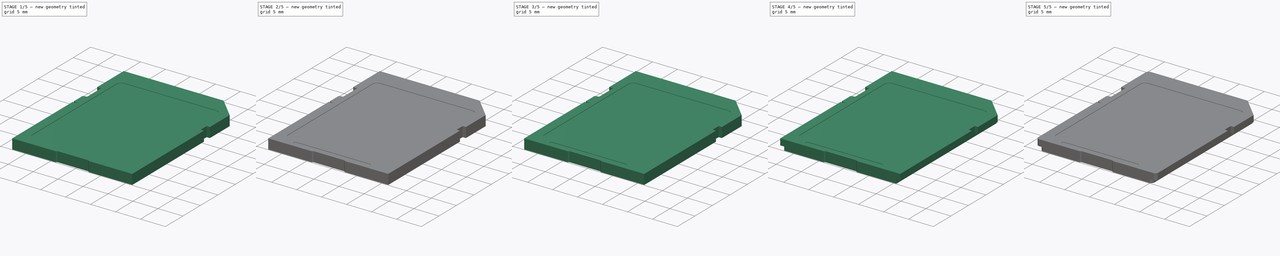
[diagram: build sequence overview — one tinted view per stage of 5, left to right]
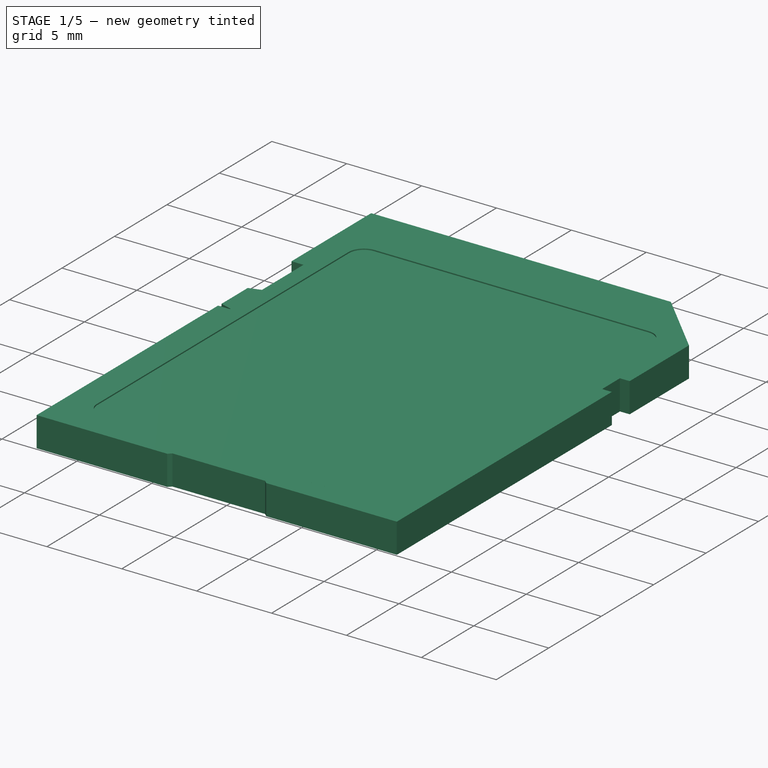
[diagram: stage 1 of 5 — iso view after this stage's code; geometry added in this stage tinted green]
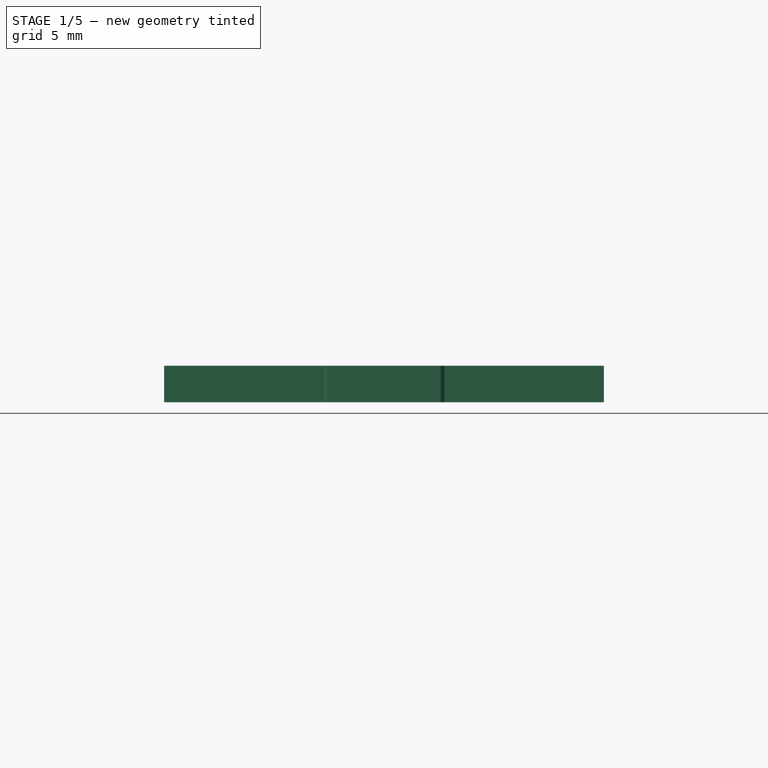
[diagram: stage 1 of 5 — front view after this stage's code; geometry added in this stage tinted green]
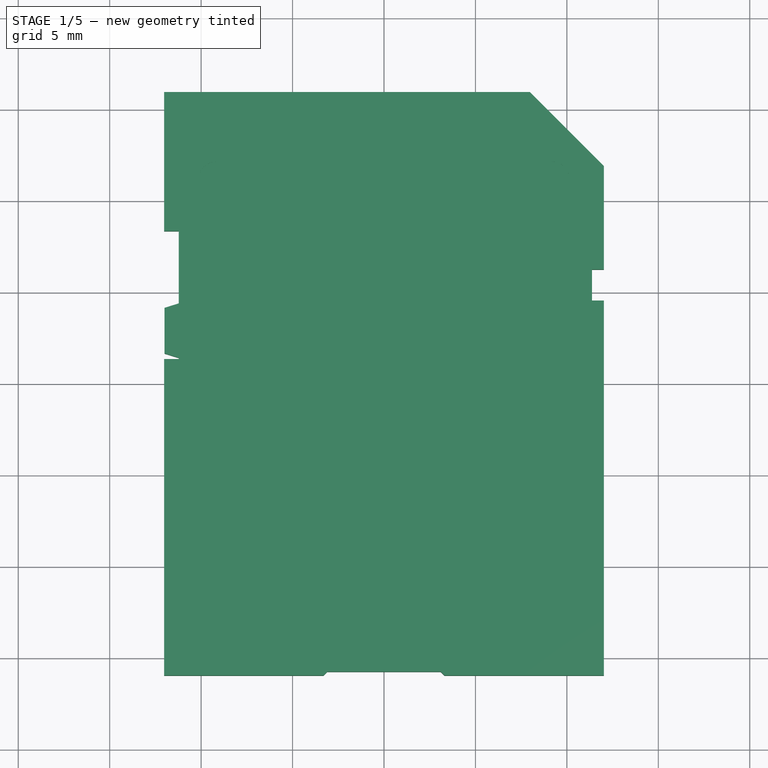
[diagram: stage 1 of 5 — top view after this stage's code; geometry added in this stage tinted green]
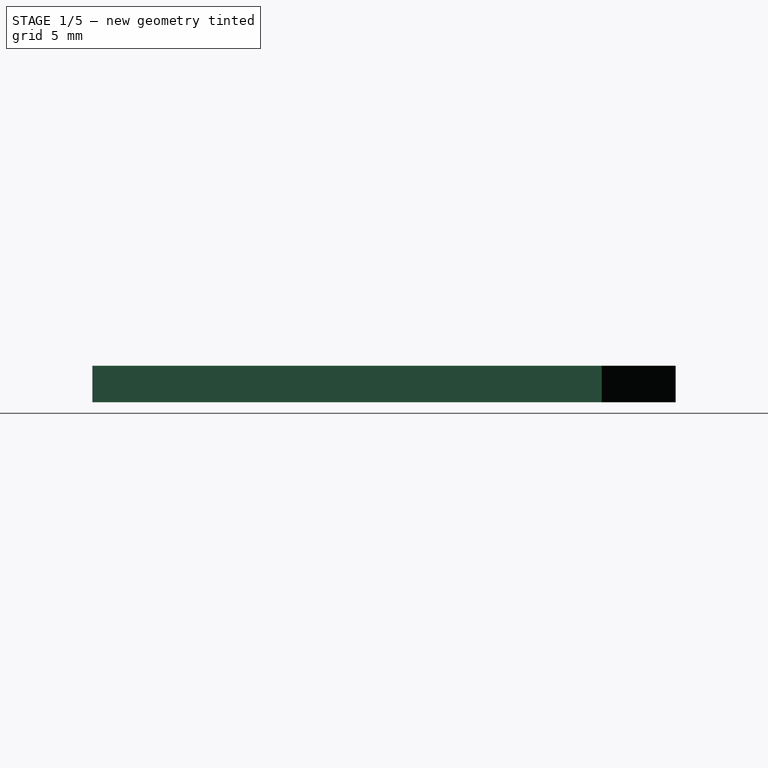
[diagram: stage 1 of 5 — right view after this stage's code; geometry added in this stage tinted green]
FCSTD DOCUMENT  (FreeCAD 0.14R3702 (Git))
Label: sd-card
License: CC-BY 3.0
LicenseURL: http://creativecommons.org/licenses/by/3.0/
objects: Sketcher::SketchObject×11, PartDesign::Pocket×6, PartDesign::Pad×5, PartDesign::LinearPattern×2, App::DocumentObjectGroup×2, Part::Feature×2, PartDesign::Mirrored×1, Part::Fillet×1, Part::Compound×1
note: 40 computed .brp shape members not serialized (recipe doc carries the construction recipe); baked Part::Feature solids carry a one-line shape summary decoded from their .brp

FEATURE [Sketcher::SketchObject] Sketch  label="sd-raw-body-sketch"
  sketch-geometry (17):
    g0: LineSegment StartX=-12.0218 StartY=15.95 StartZ=0 EndX=7.97822 EndY=15.95 EndZ=0
    g1: LineSegment StartX=7.97822 StartY=15.95 StartZ=0 EndX=12.0218 EndY=11.9064 EndZ=0
    g2: LineSegment StartX=12.0218 StartY=11.9064 StartZ=0 EndX=12.0218 EndY=6.25 EndZ=0
    g3: LineSegment StartX=12.0218 StartY=-15.95 StartZ=0 EndX=3.3 EndY=-15.95 EndZ=0
    g4: LineSegment StartX=-12.0218 StartY=-15.95 StartZ=0 EndX=-12.0218 EndY=1.35 EndZ=0
    g5: LineSegment StartX=12.0218 StartY=6.25 StartZ=0 EndX=11.3718 EndY=6.25 EndZ=0
    g6: LineSegment StartX=11.3718 StartY=6.25 StartZ=0 EndX=11.3718 EndY=4.55 EndZ=0
    g7: LineSegment StartX=11.3718 StartY=4.55 StartZ=0 EndX=12.0218 EndY=4.55 EndZ=0
    g8: LineSegment StartX=12.0218 StartY=4.55 StartZ=0 EndX=12.0218 EndY=-15.95 EndZ=0
    g9: LineSegment StartX=-12.0218 StartY=8.35 StartZ=0 EndX=-11.2218 EndY=8.35 EndZ=0
    g10: LineSegment StartX=-11.2218 StartY=8.35 StartZ=0 EndX=-11.2218 EndY=1.35 EndZ=0
    g11: LineSegment StartX=-11.2218 StartY=1.35 StartZ=0 EndX=-12.0218 EndY=1.35 EndZ=0
    g12: LineSegment StartX=-12.0218 StartY=8.35 StartZ=0 EndX=-12.0218 EndY=15.95 EndZ=0
    g13: LineSegment StartX=-3.3 StartY=-15.95 StartZ=0 EndX=-3.1 EndY=-15.75 EndZ=0
    g14: LineSegment StartX=-3.1 StartY=-15.75 StartZ=0 EndX=3.1 EndY=-15.75 EndZ=0
    g15: LineSegment StartX=3.1 StartY=-15.75 StartZ=0 EndX=3.3 EndY=-15.95 EndZ=0
    g16: LineSegment StartX=-3.3 StartY=-15.95 StartZ=0 EndX=-12.0218 EndY=-15.95 EndZ=0
  constraints (47):
    c: Horizontal(g0)
    c: Coincident(g0,g1)
    c: Coincident(g1,g2)
    c: Vertical(g2)
    c: Coincident(g8,g3)
    c: Horizontal(g3)
    c: Coincident(g16,g4)
    c: Coincident(g12,g0)
    c: Vertical(g4)
    c: Symmetric(g0,g8,g-1)
    c: Angle(g1,g-1) = 0.785398
    c: DistanceX(g0) = 20
    c: Horizontal(g5)
    c: Coincident(g5,g6)
    c: Vertical(g6)
    c: Coincident(g6,g7)
    c: Horizontal(g7)
    c: Tangent(g2,g8)
    c: Coincident(g5,g2)
    c: Coincident(g7,g8)
    c: DistanceY(g6) = -1.7
    c: DistanceX(g5) = -0.65
    c: DistanceY(g8) = -20.5
    c: Horizontal(g9)
    c: Coincident(g9,g10)
    c: Vertical(g10)
    c: Coincident(g10,g11)
    c: Horizontal(g11)
    c: Coincident(g12,g9)
    c: Tangent(g4,g12)
    c: Coincident(g11,g4)
    c: DistanceY(g16,g0) = 31.9
    c: DistanceY(g10) = -7
    c: DistanceX(g11) = -0.8
    c: DistanceY(g4) = 17.3
    c: Coincident(g13,g14)
    c: Coincident(g14,g15)
    c: Horizontal(g14)
    c: DistanceX(g3,g16) = -24.0436
    c: Tangent(g3,g16)
    c: Coincident(g13,g16)
    c: Coincident(g15,g3)
    c: Symmetric(g13,g3,g-2)
    c: DistanceX(g14) = 6.2
    c: Angle(g3,g13) = 0.785398
    c: Angle(g3,g15) = 2.35619
    c: DistanceY(g3,g14) = 0.2
FEATURE [PartDesign::Pad] Pad  label="sd-raw-body"
  Length = 2
  Length2 = 100
  Sketch = -> Sketch
  Type = 0
FEATURE [Sketcher::SketchObject] Sketch001  label="label-pocket-sketch"
  ExternalGeometry = -> [Pad]
  Placement = pos=(0,0,2) rot=(0,0,1;0rad)
  Support = -> Pad [Face19]
  sketch-geometry (8):
    g0: LineSegment StartX=-9.15 StartY=12.15 StartZ=0 EndX=9.15 EndY=12.15 EndZ=0
    g1: LineSegment StartX=10.15 StartY=11.15 StartZ=0 EndX=10.15 EndY=-12.85 EndZ=0
    g2: LineSegment StartX=9.15 StartY=-13.85 StartZ=0 EndX=-9.15 EndY=-13.85 EndZ=0
    g3: LineSegment StartX=-10.15 StartY=-12.85 StartZ=0 EndX=-10.15 EndY=11.15 EndZ=0
    g4: ArcOfCircle CenterX=-9.15 CenterY=11.15 CenterZ=0 NormalX=0 NormalY=0 NormalZ=1 Radius=1 StartAngle=1.5708 EndAngle=3.14159
    g5: ArcOfCircle CenterX=9.15 CenterY=11.15 CenterZ=0 NormalX=0 NormalY=0 NormalZ=1 Radius=1 StartAngle=0 EndAngle=1.5708
    g6: ArcOfCircle CenterX=9.15 CenterY=-12.85 CenterZ=0 NormalX=0 NormalY=0 NormalZ=1 Radius=1 StartAngle=4.71239 EndAngle=6.28319
    g7: ArcOfCircle CenterX=-9.15 CenterY=-12.85 CenterZ=0 NormalX=0 NormalY=0 NormalZ=1 Radius=1 StartAngle=3.14159 EndAngle=4.71239
  constraints (20):
    c: Horizontal(g0)
    c: Horizontal(g2)
    c: Vertical(g1)
    c: Vertical(g3)
    c: Tangent(g0,g4)
    c: Tangent(g3,g4)
    c: Tangent(g0,g5)
    c: Tangent(g1,g5)
    c: Tangent(g1,g6)
    c: Tangent(g2,g6)
    c: Tangent(g2,g7)
    c: Tangent(g3,g7)
    c: Equal(g4,g5)
    c: Equal(g5,g6)
    c: Equal(g6,g7)
    c: Symmetric(g7,g6,g-2)
    c: Radius(g4) = 1
    c: DistanceY(g2,g0) = 26
    c: DistanceX(g3,g1) = 20.3
    c: DistanceY(g-3,g0) = -3.8
FEATURE [PartDesign::Pocket] Pocket  label="pocket label"
  Length = 0.08
  Sketch = -> Sketch001
  Type = 0
FEATURE [App::DocumentObjectGroup] Group  label="sd-card-src"
  Group = -> [Pad,Pocket,Pocket001,Pocket002,LinearPattern,Pocket003,Pad001,LinearPattern001,Pad002,Pocket004,Mirrored,Pocket007,Fillet]
FEATURE [Part::Feature] Fillet001  label="sd-card-final"
  shape: bbox 24.04 x 31.9 x 2 mm, 102 faces (baked)
FEATURE [Part::Compound] Compound  label="sd-card-final001"
  Links = -> [Pad007,Fillet001]
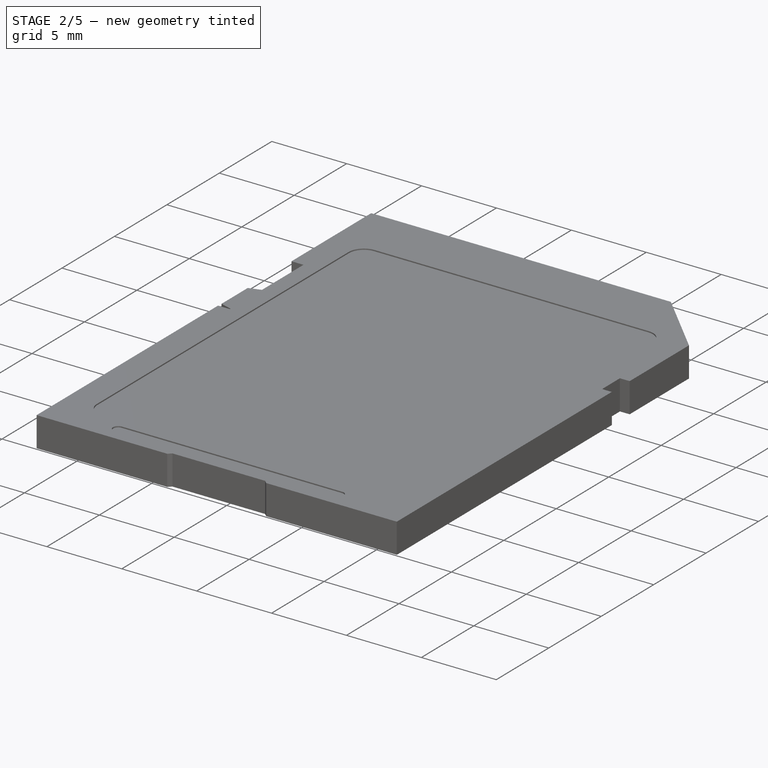
[diagram: stage 2 of 5 — iso view after this stage's code; geometry added in this stage tinted green]
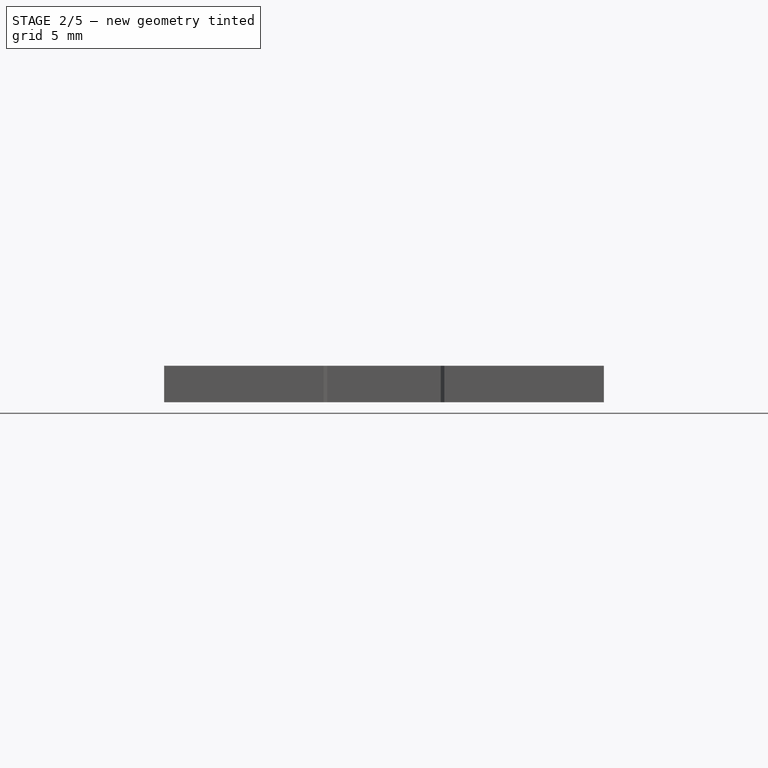
[diagram: stage 2 of 5 — front view after this stage's code; geometry added in this stage tinted green]
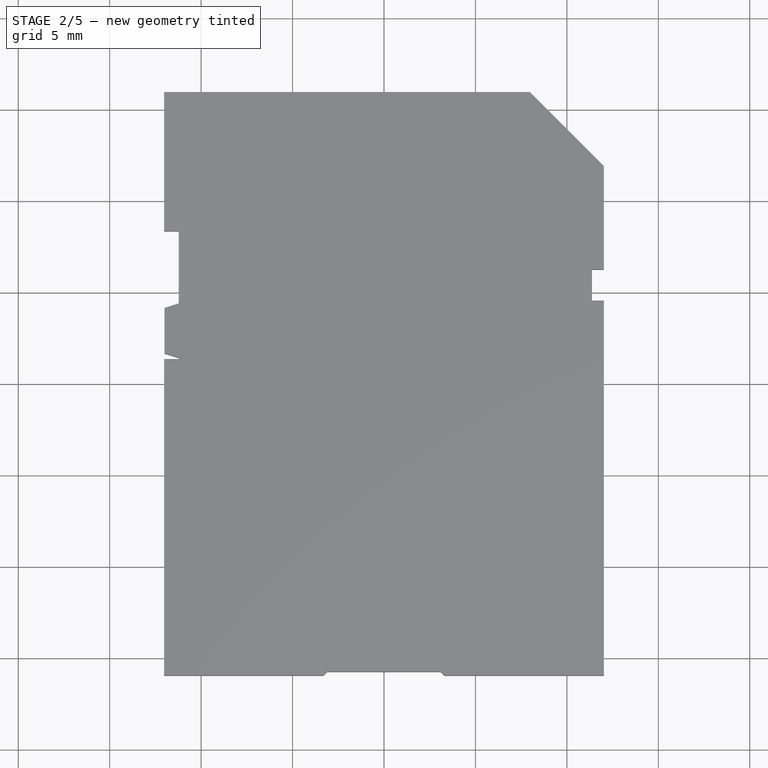
[diagram: stage 2 of 5 — top view after this stage's code; geometry added in this stage tinted green]
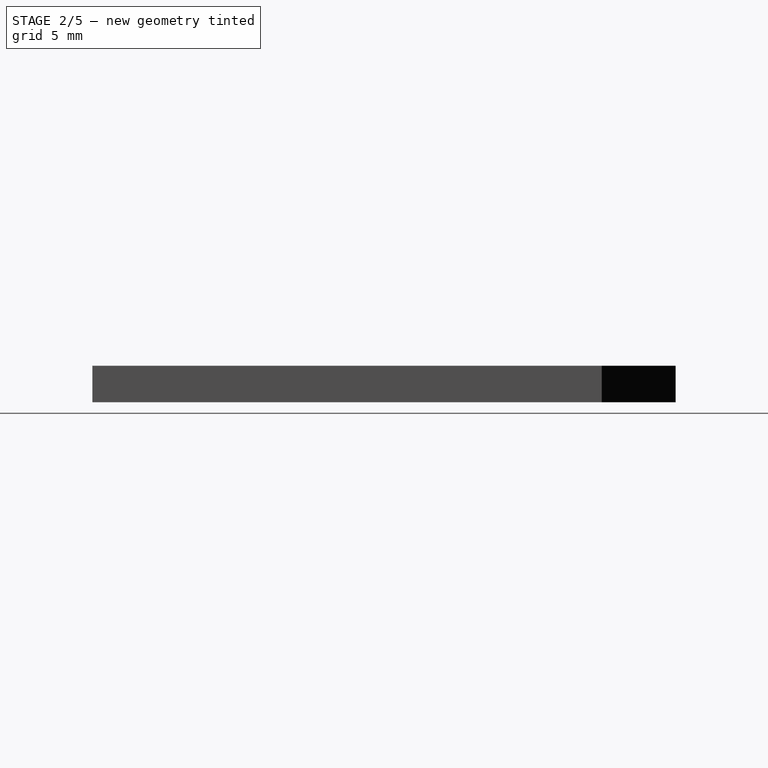
[diagram: stage 2 of 5 — right view after this stage's code; geometry added in this stage tinted green]
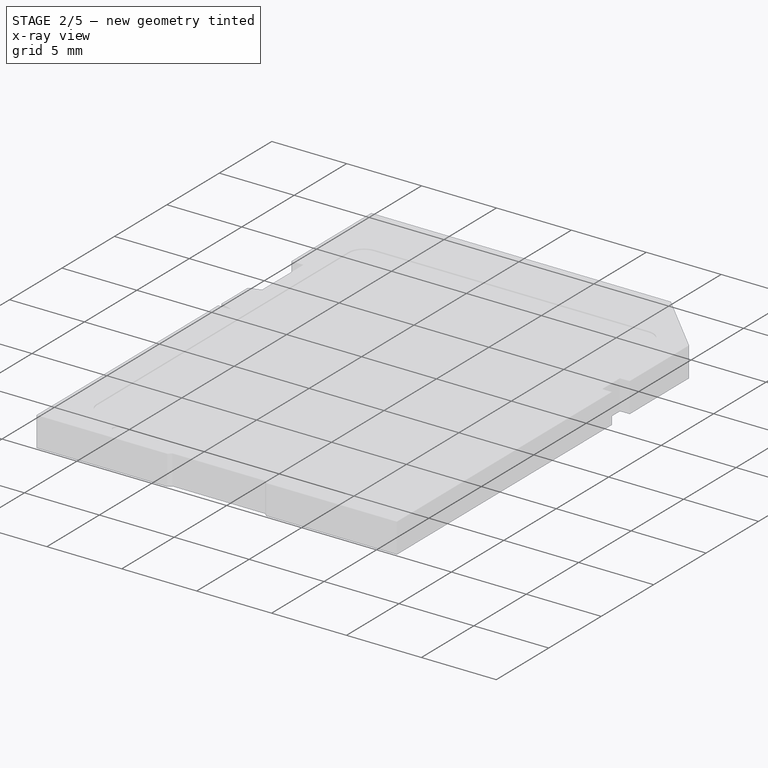
[diagram: stage 2 of 5 — x-ray composite at the iso view; earlier geometry ghosted, this stage's added geometry solid]
FEATURE [Sketcher::SketchObject] Sketch002  label="top_bottom_pocket-sketch"
  ExternalGeometry = -> [Pocket]
  Placement = pos=(0,0,2) rot=(0,0,1;0rad)
  Support = -> Pocket [Face5]
  sketch-geometry (5):
    g0: ArcOfCircle CenterX=-7.35 CenterY=-14.84 CenterZ=0 NormalX=0 NormalY=0 NormalZ=1 Radius=0.35 StartAngle=1.5708 EndAngle=4.71239
    g1: LineSegment StartX=-7.35 StartY=-14.49 StartZ=0 EndX=7.35 EndY=-14.49 EndZ=0
    g2: LineSegment StartX=-7.35 StartY=-15.19 StartZ=0 EndX=7.35 EndY=-15.19 EndZ=0
    g3: ArcOfCircle CenterX=7.35 CenterY=-14.84 CenterZ=0 NormalX=0 NormalY=0 NormalZ=1 Radius=0.35 StartAngle=4.71239 EndAngle=7.85398
    g4: LineSegment [constr] StartX=-7.7 StartY=-14.84 StartZ=0 EndX=7.7 EndY=-14.84 EndZ=0
  constraints (19):
    c: Radius(g0) = 0.35
    c: Horizontal(g1)
    c: Tangent(g1,g0)
    c: Horizontal(g2)
    c: Coincident(g0,g1)
    c: Coincident(g0,g2)
    c: Coincident(g2,g0)
    c: Tangent(g2,g0)
    c: Coincident(g3,g2)
    c: Coincident(g3,g1)
    c: Tangent(g2,g3)
    c: PointOnObject(g4,g0)
    c: PointOnObject(g4,g3)
    c: Horizontal(g4)
    c: PointOnObject(g3,g4)
    c: Symmetric(g4,g4,g-2)
    c: Tangent(g1,g3)
    c: DistanceX(g4) = 15.4
    c: DistanceY(g0,g-3) = -0.76
FEATURE [PartDesign::Pocket] Pocket001  label="top-bottom-pocket"
  Length = 0.08
  Sketch = -> Sketch002
  Type = 0
FEATURE [Sketcher::SketchObject] Sketch003  label="Contact-sketch"
  ExternalGeometry = -> [Pocket001]
  Placement = pos=(0,0,0) rot=(1,0,0;3.14159rad)
  Support = -> Pocket001 [Face4]
  sketch-geometry (4):
    g0: LineSegment StartX=7.97822 StartY=-16.95 StartZ=0 EndX=6.07822 EndY=-16.95 EndZ=0
    g1: LineSegment StartX=6.07822 StartY=-16.95 StartZ=0 EndX=6.07822 EndY=-10.35 EndZ=0
    g2: LineSegment StartX=6.07822 StartY=-10.35 StartZ=0 EndX=7.97822 EndY=-10.35 EndZ=0
    g3: LineSegment StartX=7.97822 StartY=-10.35 StartZ=0 EndX=7.97822 EndY=-16.95 EndZ=0
  constraints (12):
    c: Coincident(g0,g1)
    c: Coincident(g1,g2)
    c: Coincident(g2,g3)
    c: Coincident(g3,g0)
    c: Horizontal(g0)
    c: Horizontal(g2)
    c: Vertical(g1)
    c: Vertical(g3)
    c: PointOnObject(g-3,g3)
    c: DistanceX(g2) = 1.9
    c: DistanceY(g-3,g2) = 5.6
    c: DistanceY(g-3,g0) = -1
FEATURE [PartDesign::Pocket] Pocket002  label="Contact-pocket"
  Length = 0.55
  Sketch = -> Sketch003
  Type = 0
FEATURE [PartDesign::LinearPattern] LinearPattern  label="8-contacts"
  Direction = -> Sketch003 [H_Axis]
  Length = 16.65
  Occurrences = 8
  Originals = -> [Pocket002]
  Reversed = true
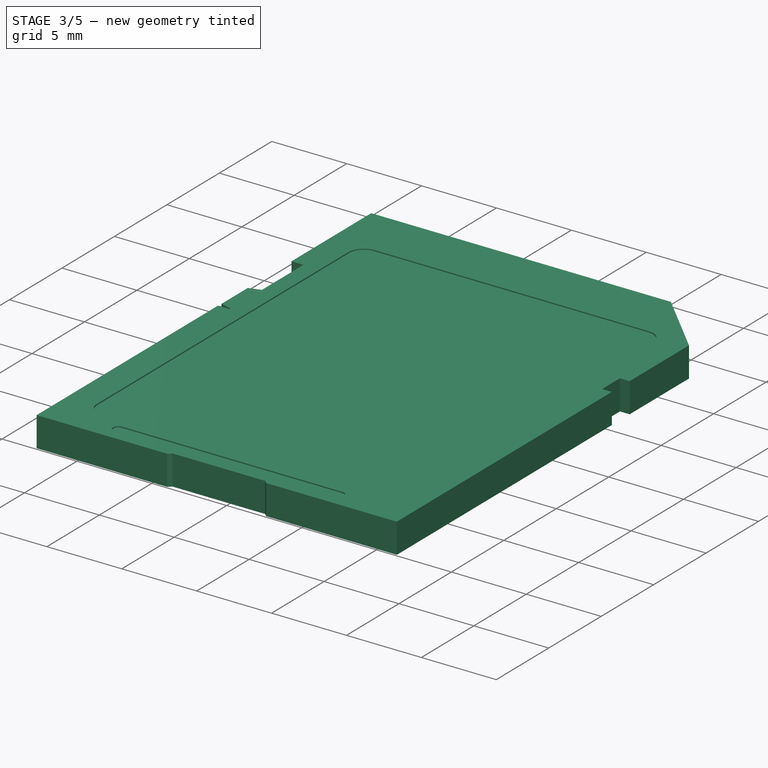
[diagram: stage 3 of 5 — iso view after this stage's code; geometry added in this stage tinted green]
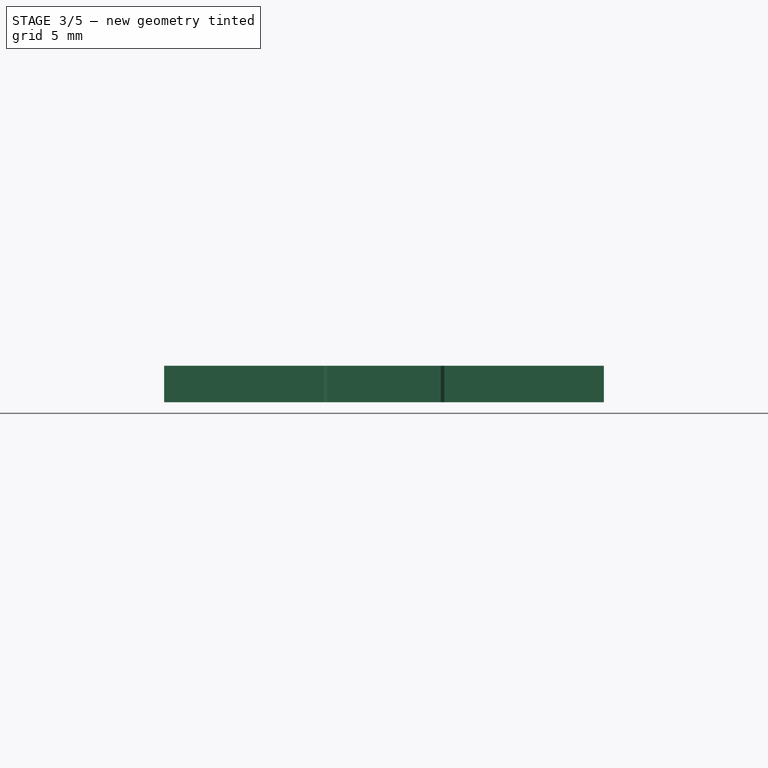
[diagram: stage 3 of 5 — front view after this stage's code; geometry added in this stage tinted green]
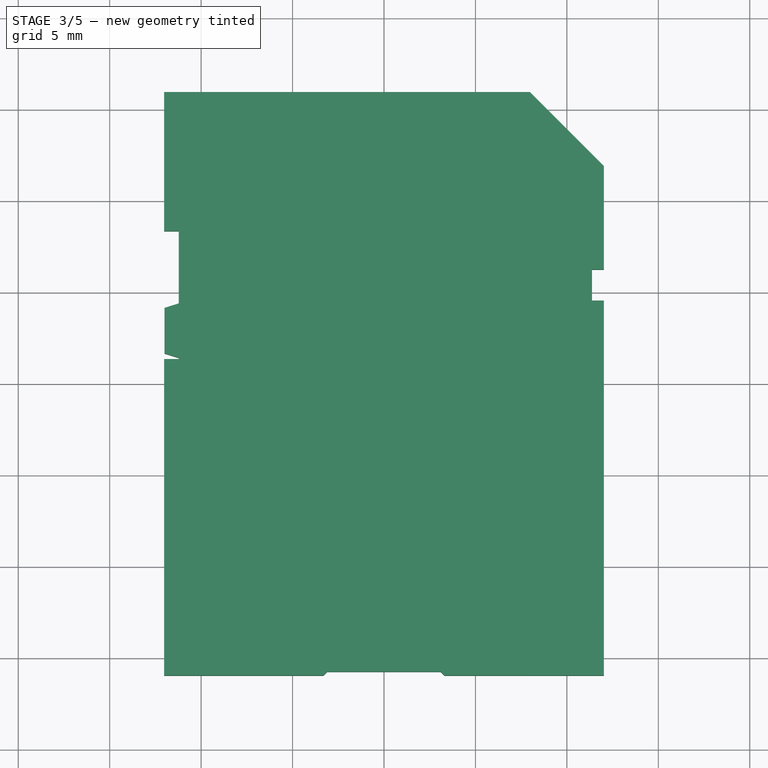
[diagram: stage 3 of 5 — top view after this stage's code; geometry added in this stage tinted green]
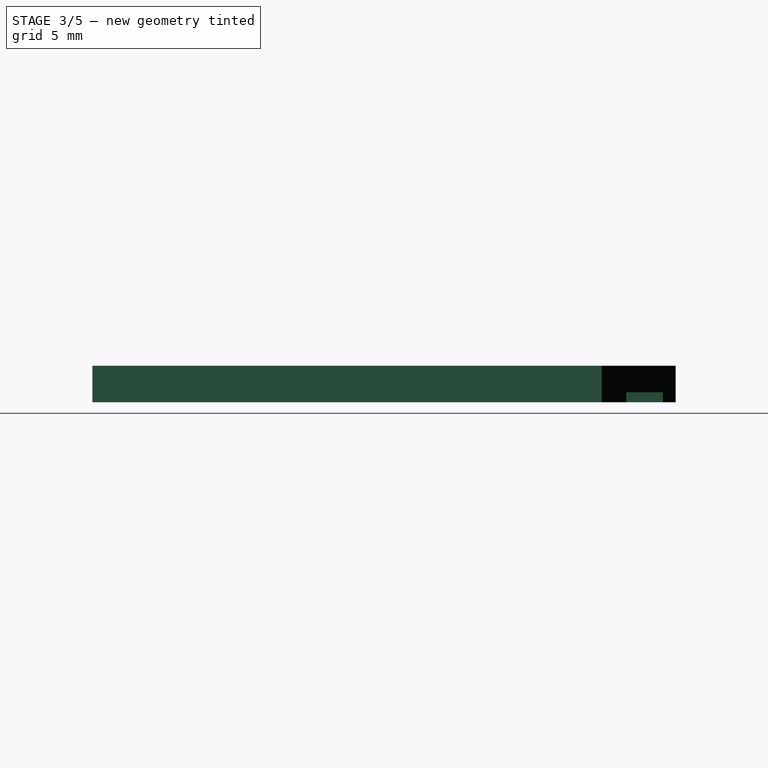
[diagram: stage 3 of 5 — right view after this stage's code; geometry added in this stage tinted green]
FEATURE [Sketcher::SketchObject] Sketch004
  ExternalGeometry = -> [LinearPattern]
  Placement = pos=(0,0,0) rot=(1,0,0;3.14159rad)
  Support = -> LinearPattern [Face4]
  sketch-geometry (4):
    g0: LineSegment StartX=8.67822 StartY=-8.35 StartZ=0 EndX=10.6782 EndY=-8.35 EndZ=0
    g1: LineSegment StartX=10.6782 StartY=-8.35 StartZ=0 EndX=10.6782 EndY=-16.95 EndZ=0
    g2: LineSegment StartX=10.6782 StartY=-16.95 StartZ=0 EndX=8.67822 EndY=-16.95 EndZ=0
    g3: LineSegment StartX=8.67822 StartY=-16.95 StartZ=0 EndX=8.67822 EndY=-8.35 EndZ=0
  constraints (12):
    c: Coincident(g0,g1)
    c: Coincident(g1,g2)
    c: Coincident(g2,g3)
    c: Coincident(g3,g0)
    c: Horizontal(g0)
    c: Horizontal(g2)
    c: Vertical(g1)
    c: Vertical(g3)
    c: DistanceX(g-3,g0) = 0.7
    c: DistanceY(g-3,g0) = 2
    c: DistanceX(g0) = 2
    c: DistanceY(g-3,g2) = -1
FEATURE [PartDesign::Pocket] Pocket003  label="9th-contact"
  Length = 0.55
  Sketch = -> Sketch004
  Type = 0
FEATURE [Sketcher::SketchObject] Sketch005
  ExternalGeometry = -> [Pocket003]
  Placement = pos=(0,0,0.55) rot=(1,0,0;3.14159rad)
  Support = -> Pocket003 [Face60]
  sketch-geometry (4):
    g0: LineSegment StartX=6.07822 StartY=-10.35 StartZ=0 EndX=7.97822 EndY=-10.35 EndZ=0
    g1: LineSegment StartX=7.97822 StartY=-10.35 StartZ=0 EndX=7.97822 EndY=-15.25 EndZ=0
    g2: LineSegment StartX=7.97822 StartY=-15.25 StartZ=0 EndX=6.07822 EndY=-15.25 EndZ=0
    g3: LineSegment StartX=6.07822 StartY=-15.25 StartZ=0 EndX=6.07822 EndY=-10.35 EndZ=0
  constraints (11):
    c: Coincident(g0,g1)
    c: Coincident(g1,g2)
    c: Coincident(g2,g3)
    c: Coincident(g3,g0)
    c: Horizontal(g0)
    c: Horizontal(g2)
    c: Vertical(g1)
    c: Vertical(g3)
    c: Coincident(g0,g-5)
    c: Coincident(g0,g-4)
    c: DistanceY(g1,g-4) = -0.7
FEATURE [PartDesign::Pad] Pad001  label="master-contac-pad"
  Length = 0.1
  Length2 = 100
  Sketch = -> Sketch005
  Type = 0
FEATURE [PartDesign::LinearPattern] LinearPattern001  label="contac-pad"
  Direction = -> Sketch005 [H_Axis]
  Length = 16.65
  Occurrences = 8
  Originals = -> [Pad001]
  Reversed = true
FEATURE [Sketcher::SketchObject] Sketch006
  ExternalGeometry = -> [LinearPattern001]
  Placement = pos=(0,0,0.55) rot=(1,0,0;3.14159rad)
  Support = -> LinearPattern001 [Face83]
  sketch-geometry (5):
    g0: LineSegment StartX=8.67822 StartY=-8.35 StartZ=0 EndX=8.67822 EndY=-13.15 EndZ=0
    g1: LineSegment StartX=8.67822 StartY=-13.15 StartZ=0 EndX=10.1782 EndY=-13.15 EndZ=0
    g2: LineSegment StartX=10.1782 StartY=-13.15 StartZ=0 EndX=10.6782 EndY=-12.65 EndZ=0
    g3: LineSegment StartX=10.6782 StartY=-12.65 StartZ=0 EndX=10.6782 EndY=-8.35 EndZ=0
    g4: LineSegment StartX=10.6782 StartY=-8.35 StartZ=0 EndX=8.67822 EndY=-8.35 EndZ=0
  constraints (14):
    c: Vertical(g0)
    c: Coincident(g0,g1)
    c: Coincident(g1,g2)
    c: Coincident(g2,g3)
    c: Vertical(g3)
    c: Coincident(g3,g4)
    c: Horizontal(g4)
    c: Coincident(g4,g0)
    c: Coincident(g-3,g0)
    c: Coincident(g3,g-4)
    c: Horizontal(g1)
    c: Angle(g2,g1) = 2.35619
    c: DistanceY(g2,g-4) = -0.6
    c: DistanceY(g0) = -4.8
FEATURE [PartDesign::Pad] Pad002  label="9th-contac-path"
  Length = 0.1
  Length2 = 100
  Sketch = -> Sketch006
  Type = 0
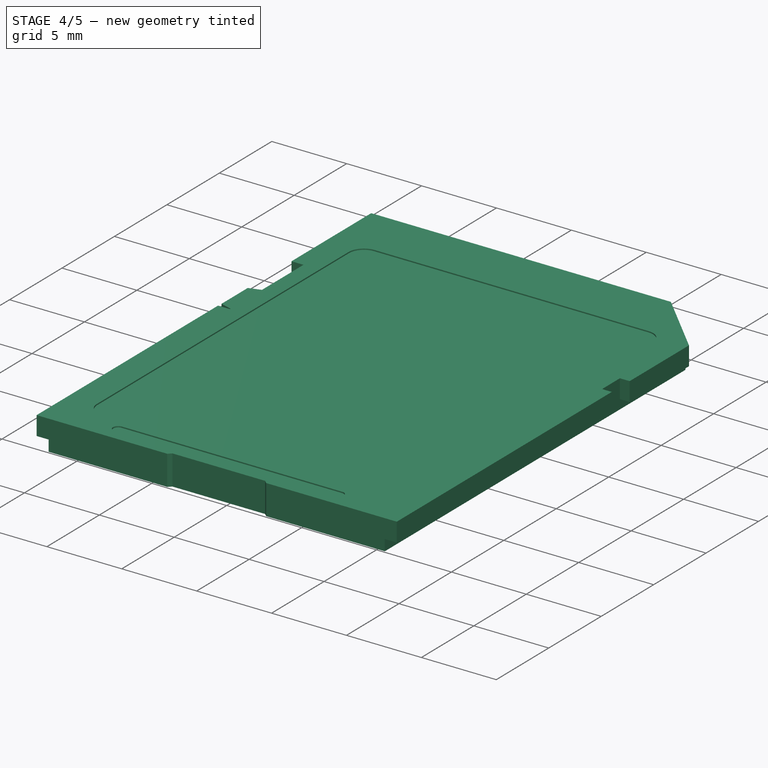
[diagram: stage 4 of 5 — iso view after this stage's code; geometry added in this stage tinted green]
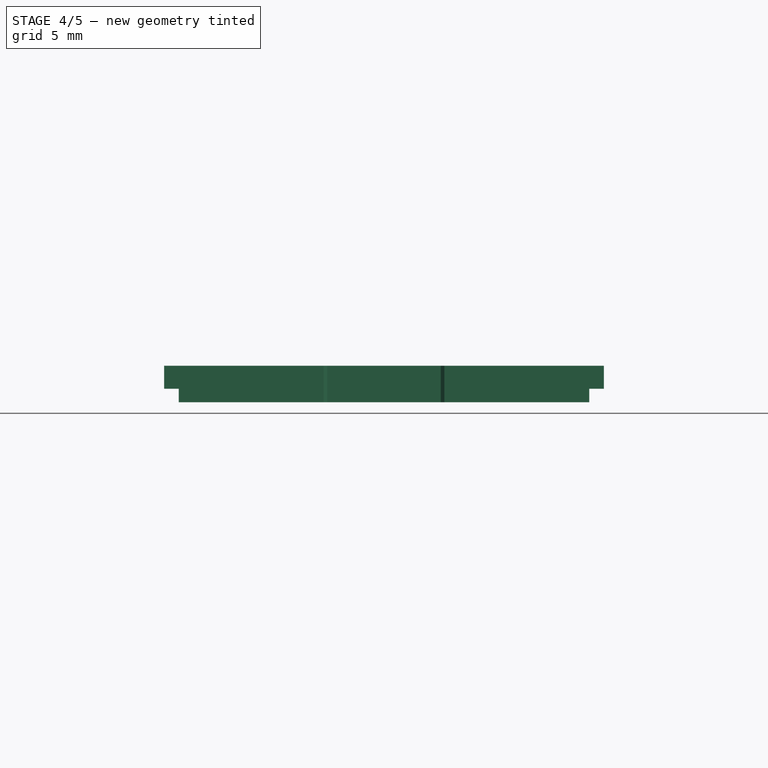
[diagram: stage 4 of 5 — front view after this stage's code; geometry added in this stage tinted green]
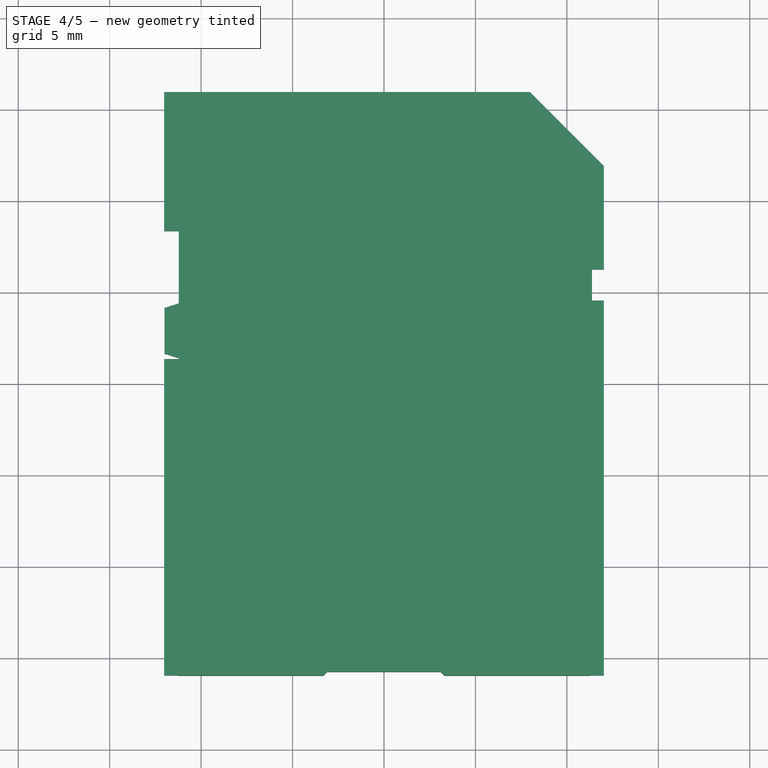
[diagram: stage 4 of 5 — top view after this stage's code; geometry added in this stage tinted green]
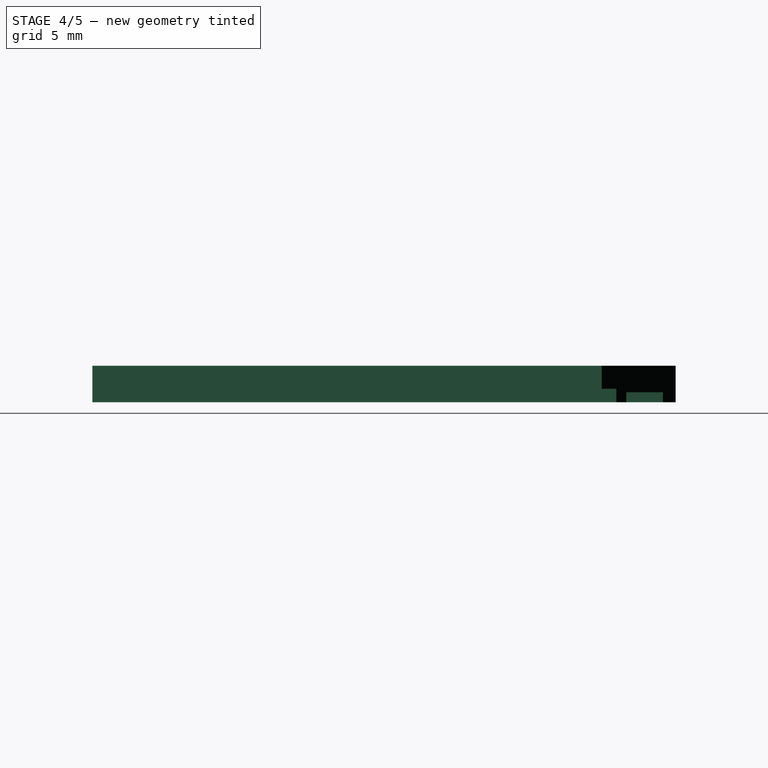
[diagram: stage 4 of 5 — right view after this stage's code; geometry added in this stage tinted green]
FEATURE [Sketcher::SketchObject] Sketch007
  ExternalGeometry = -> [Pad002]
  Placement = pos=(0,-15.95,0) rot=(1,0,0;1.5708rad)
  Support = -> Pad002 [Face2]
  sketch-geometry (6):
    g0: LineSegment StartX=-11.2218 StartY=0.74 StartZ=0 EndX=-11.2218 EndY=-0.191555 EndZ=0
    g1: LineSegment StartX=-11.2218 StartY=-0.191555 StartZ=0 EndX=-12.6141 EndY=-0.191555 EndZ=0
    g2: LineSegment StartX=-11.2218 StartY=0.74 StartZ=0 EndX=-12.0218 EndY=0.74 EndZ=0
    g3: LineSegment StartX=-12.0218 StartY=0.74 StartZ=0 EndX=-12.6141 EndY=0.74 EndZ=0
    g4: LineSegment StartX=-12.6141 StartY=0.74 StartZ=0 EndX=-12.6141 EndY=0 EndZ=0
    g5: LineSegment StartX=-12.6141 StartY=0 StartZ=0 EndX=-12.6141 EndY=-0.191555 EndZ=0
  constraints (16):
    c: Coincident(g0,g1)
    c: Horizontal(g1)
    c: Vertical(g0)
    c: Coincident(g2,g0)
    c: PointOnObject(g2,g-3)
    c: Horizontal(g2)
    c: Coincident(g3,g2)
    c: Horizontal(g3)
    c: DistanceX(g2) = -0.8
    c: Coincident(g4,g3)
    c: PointOnObject(g4,g-1)
    c: Vertical(g4)
    c: Coincident(g5,g4)
    c: Vertical(g5)
    c: Coincident(g1,g5)
    c: DistanceY(g4) = -0.74
FEATURE [PartDesign::Pocket] Pocket004  label="left-side"
  Length = 5
  Sketch = -> Sketch007
  Type = 1
FEATURE [PartDesign::Mirrored] Mirrored  label="right-side"
  MirrorPlane = -> Sketch007 [V_Axis]
  Originals = -> [Pocket004]
FEATURE [App::DocumentObjectGroup] Group001  label="lid-src"
  Group = -> [Pad003,Pad006]
FEATURE [Part::Feature] Pad007  label="lid"
  Placement = pos=(-11.2,2.9,0.8) rot=(0,0,1;0rad)
  shape: bbox 1.2 x 3 x 1.2 mm, 12 faces (baked)
FEATURE [PartDesign::Pocket] Pocket007  label="lid-rail001"
  Length = 0.5
  Sketch = -> Sketch008
  Type = 0
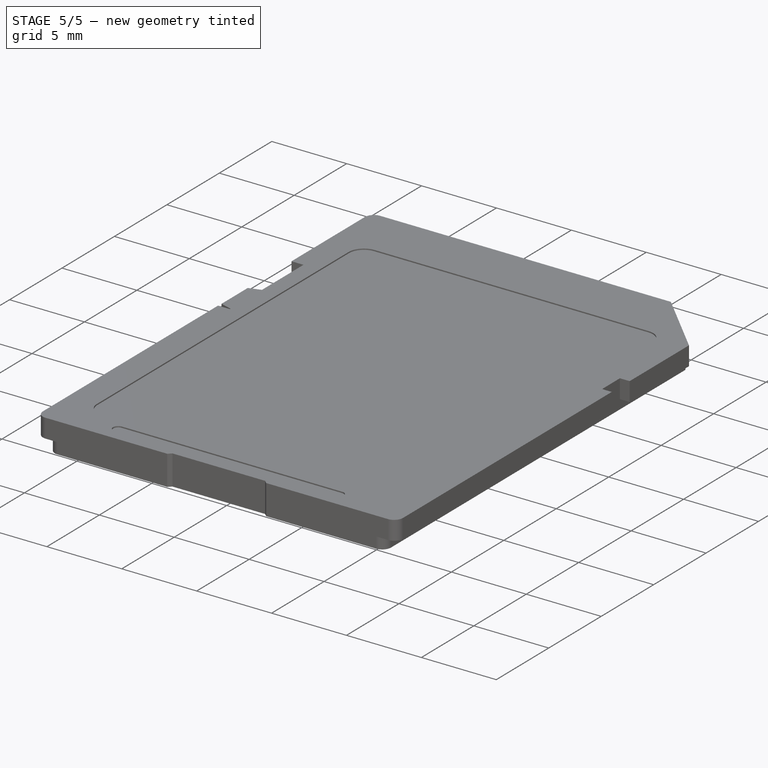
[diagram: stage 5 of 5 — iso view after this stage's code; geometry added in this stage tinted green]
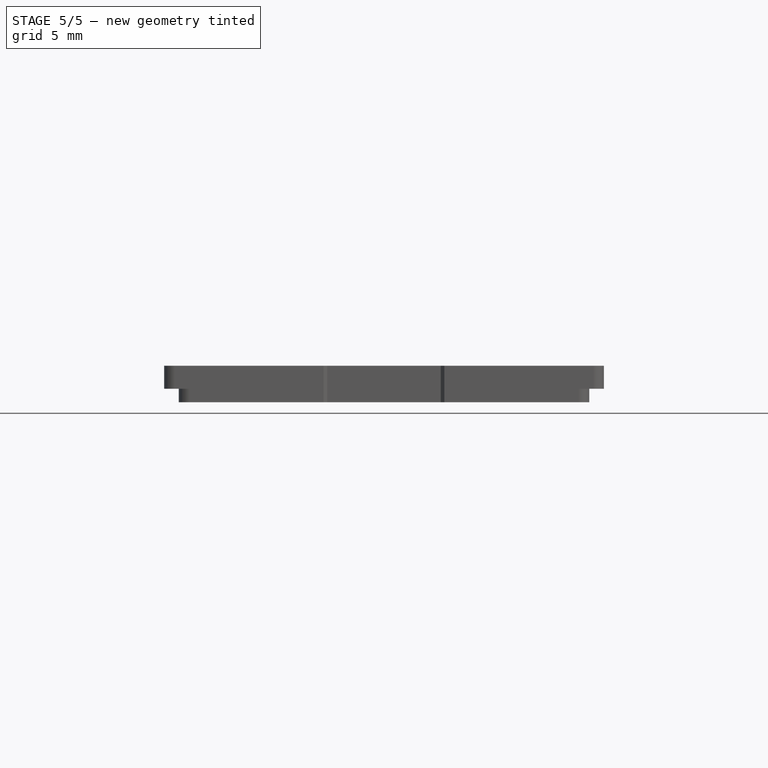
[diagram: stage 5 of 5 — front view after this stage's code; geometry added in this stage tinted green]
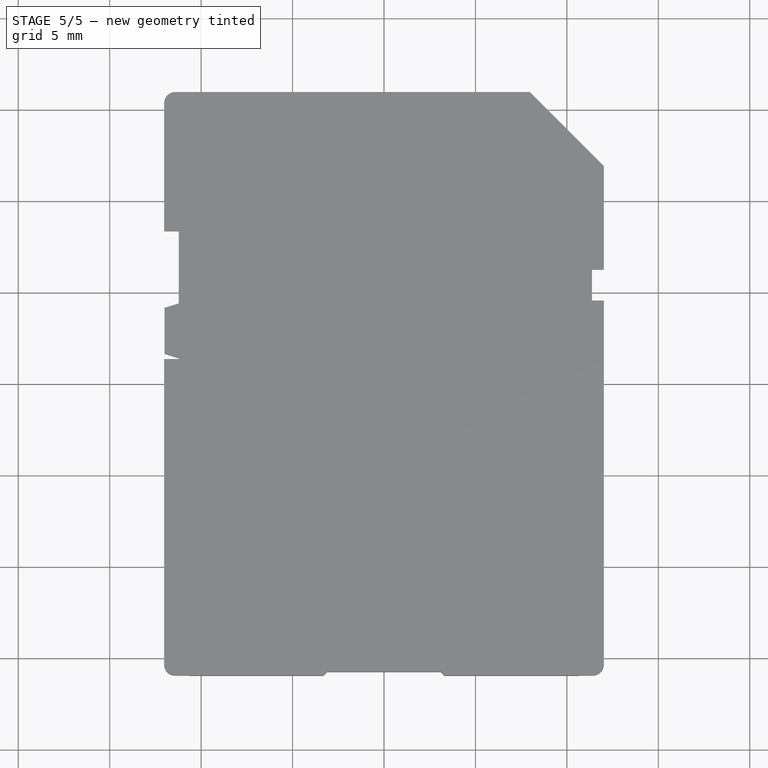
[diagram: stage 5 of 5 — top view after this stage's code; geometry added in this stage tinted green]
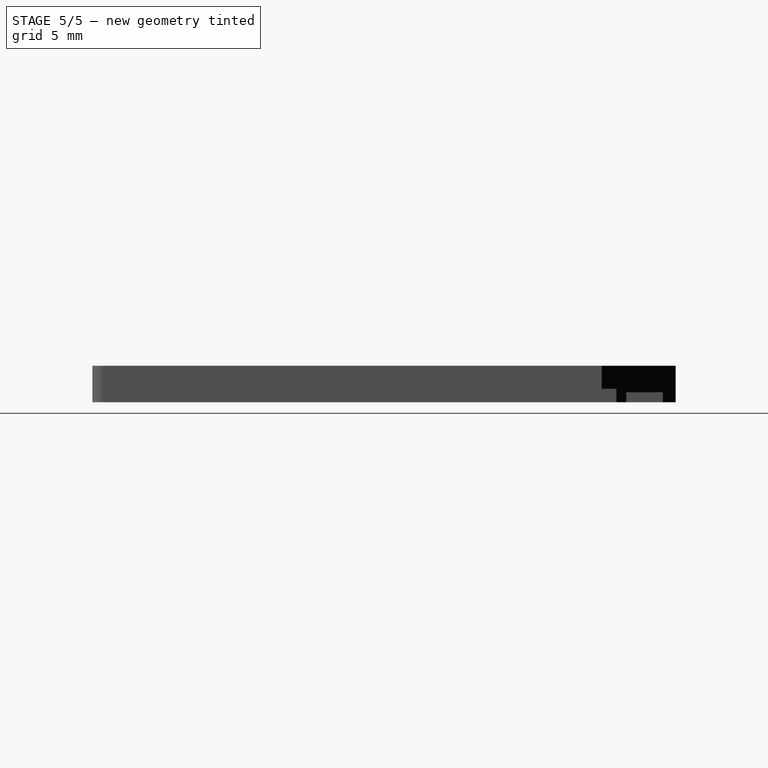
[diagram: stage 5 of 5 — right view after this stage's code; geometry added in this stage tinted green]
FEATURE [Sketcher::SketchObject] Sketch008  label="lid-rail-sketch"
  Placement = pos=(-11.2218,0,0) rot=(0.57735,-0.57735,-0.57735;2.0944rad)
  Support = -> Mirrored [Face7]
  sketch-geometry (4):
    g0: LineSegment StartX=-8.35 StartY=1.7 StartZ=0 EndX=-1.35 EndY=1.7 EndZ=0
    g1: LineSegment StartX=-1.35 StartY=1.7 StartZ=0 EndX=-1.35 EndY=1.2 EndZ=0
    g2: LineSegment StartX=-1.35 StartY=1.2 StartZ=0 EndX=-8.35 EndY=1.2 EndZ=0
    g3: LineSegment StartX=-8.35 StartY=1.2 StartZ=0 EndX=-8.35 EndY=1.7 EndZ=0
  constraints (9):
    c: Coincident(g0,g1)
    c: Coincident(g1,g2)
    c: Coincident(g2,g3)
    c: Coincident(g3,g0)
    c: Horizontal(g0)
    c: Horizontal(g2)
    c: Vertical(g1)
    c: Vertical(g3)
    c: DistanceY(g0,g1) = -0.5
FEATURE [Sketcher::SketchObject] Sketch009  label="main_body-sketch"
  sketch-geometry (4):
    g0: LineSegment StartX=-0.8 StartY=-1.25 StartZ=0 EndX=-0.8 EndY=1.25 EndZ=0
    g1: LineSegment StartX=-0.8 StartY=1.25 StartZ=0 EndX=0 EndY=1.5 EndZ=0
    g2: LineSegment StartX=0 StartY=1.5 StartZ=0 EndX=0 EndY=-1.5 EndZ=0
    g3: LineSegment StartX=0 StartY=-1.5 StartZ=0 EndX=-0.8 EndY=-1.25 EndZ=0
  constraints (12):
    c: Vertical(g0)
    c: Coincident(g0,g1)
    c: Coincident(g1,g2)
    c: PointOnObject(g2,g-2)
    c: Vertical(g2)
    c: Coincident(g2,g3)
    c: Coincident(g3,g0)
    c: Symmetric(g1,g2,g-1)
    c: Symmetric(g0,g0,g-1)
    c: DistanceY(g2) = -3
    c: DistanceY(g0) = 2.5
    c: DistanceX(g0,g1) = 0.8
FEATURE [PartDesign::Pad] Pad003  label="main-body"
  Length = 1.2
  Length2 = 100
  Sketch = -> Sketch009
  Type = 0
FEATURE [Sketcher::SketchObject] Sketch010  label="rail-sketch"
  ExternalGeometry = -> [Pad003]
  Placement = pos=(0,0,0) rot=(0.57735,0.57735,0.57735;2.0944rad)
  Support = -> Pad003 [Face3]
  sketch-geometry (4):
    g0: LineSegment StartX=-1.5 StartY=0.9 StartZ=0 EndX=1.5 EndY=0.9 EndZ=0
    g1: LineSegment StartX=1.5 StartY=0.9 StartZ=0 EndX=1.5 EndY=0.4 EndZ=0
    g2: LineSegment StartX=1.5 StartY=0.4 StartZ=0 EndX=-1.5 EndY=0.4 EndZ=0
    g3: LineSegment StartX=-1.5 StartY=0.4 StartZ=0 EndX=-1.5 EndY=0.9 EndZ=0
  constraints (12):
    c: Coincident(g0,g1)
    c: Coincident(g1,g2)
    c: Coincident(g2,g3)
    c: Coincident(g3,g0)
    c: Horizontal(g0)
    c: Horizontal(g2)
    c: Vertical(g1)
    c: Vertical(g3)
    c: DistanceY(g1) = -0.5
    c: DistanceY(g-3,g0) = -0.3
    c: PointOnObject(g0,g-4)
    c: PointOnObject(g0,g-5)
FEATURE [PartDesign::Pad] Pad006  label="lid-rail"
  Length = 0.4
  Length2 = 100
  Sketch = -> Sketch010
  Type = 0
FEATURE [Part::Fillet] Fillet
  Base = -> Pocket007
  Edges = 6 edges r=0.6: [Edge4,Edge37,Edge49,Edge52,Edge54,Edge61]
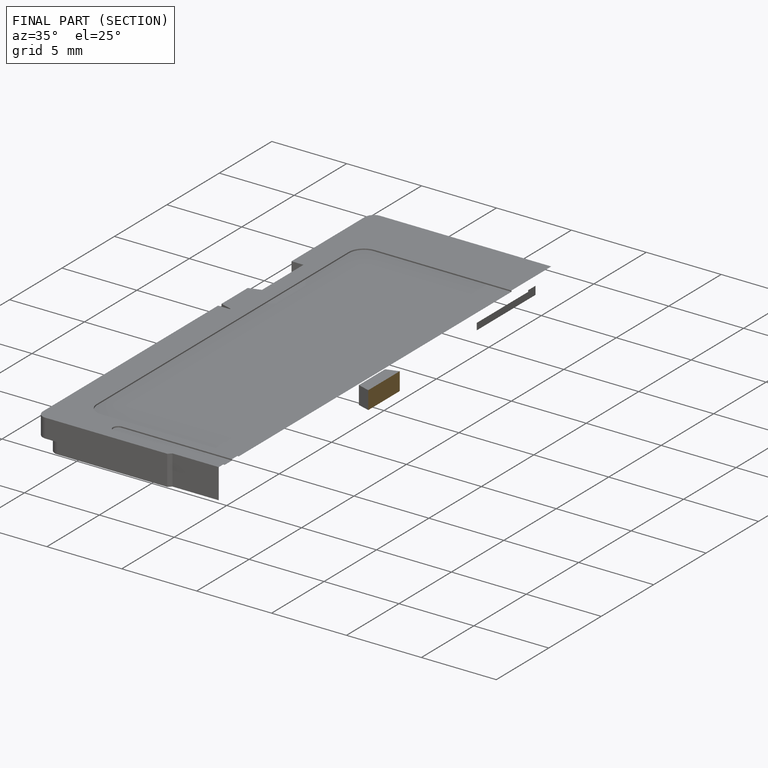
[diagram: finished part — half-section view (interior)]
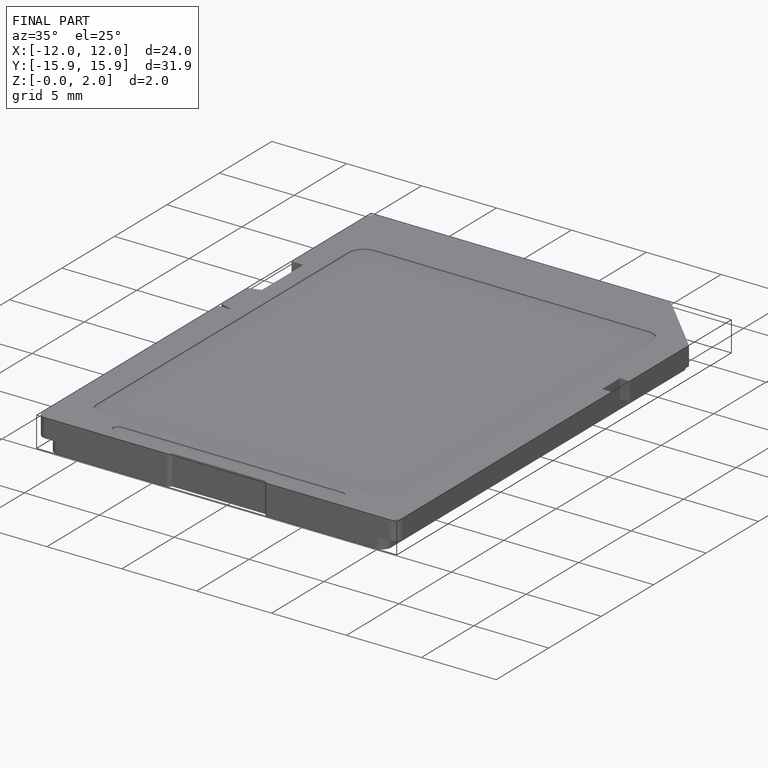
[diagram: finished part — iso view with bounding-box wireframe]
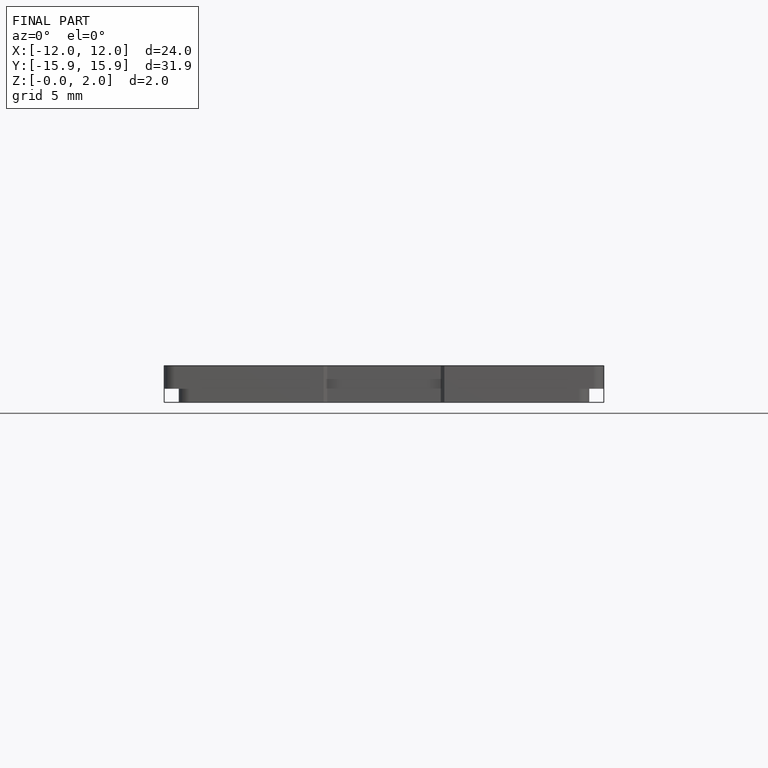
[diagram: finished part — front view with bounding-box wireframe]
